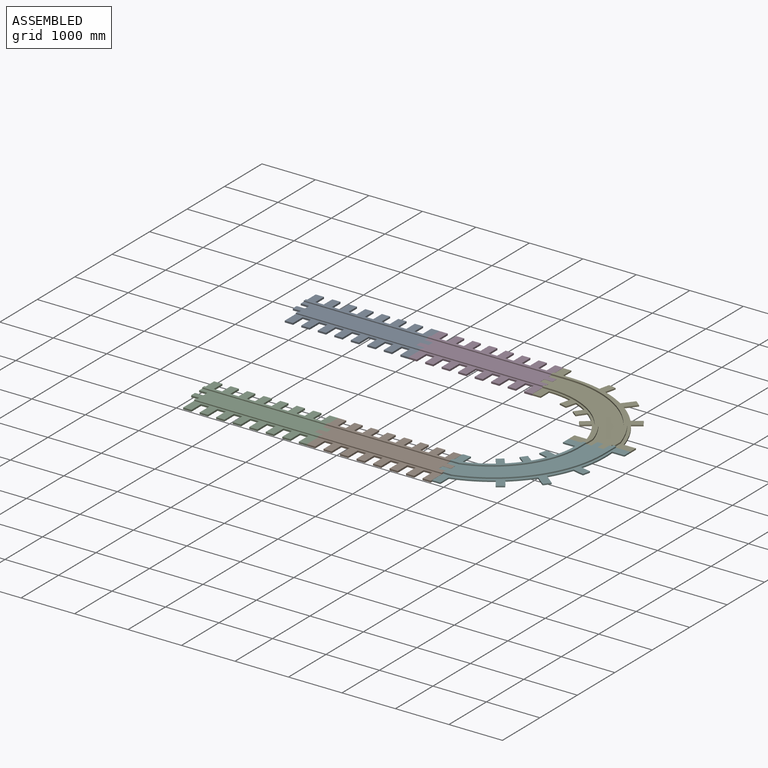
[diagram: assembled view]
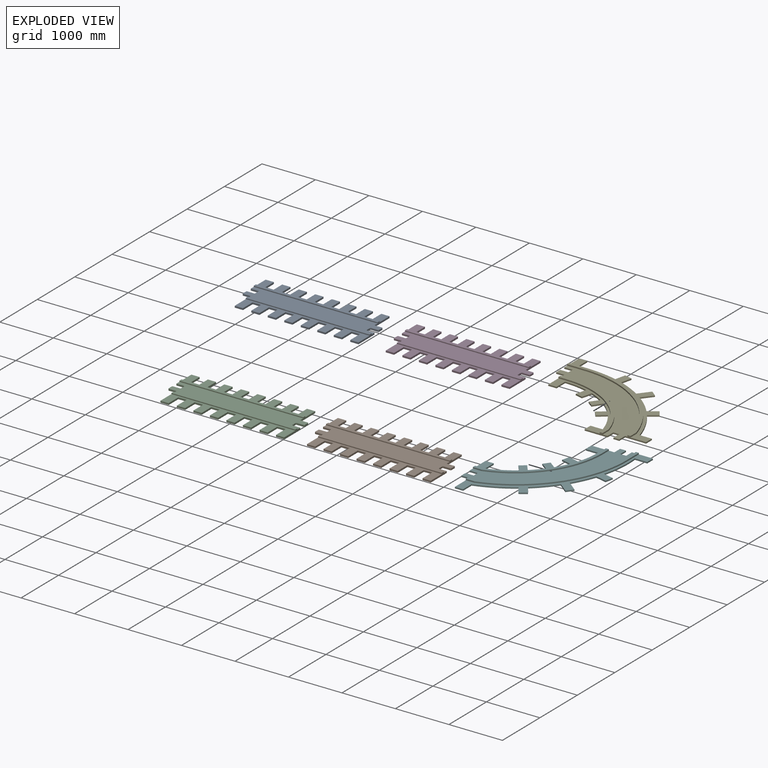
[diagram: exploded view]
GUIDED TOUR — MATED ASSEMBLY (Onshape document 573de1e4e4b0b9290a32814d, AutoMate assembly 573de1e4e4b0b9290a32814d_652605e21d5c1eac0f5606bd_4a24f7042980f0c675368cb2_default)

This assembly has 6 components, labeled P0..P5 below (a component is one placed occurrence of a part; the same part can appear more than once), held together by 5 mates. A mate is a constraint between two components; its type names the relative motion it leaves free:
  FASTENED — locks the two components together rigidly (no relative motion).
Axis/direction vectors are unit vectors and 'through' points are millimeter coordinates, both in the assembly's world frame.

MATES
  1. FASTENED "Fastened 4": P1 <-> P5, direction (1.000, 0.000, 0.000) through (3153.70, -3399.28, 773.69) mm
  2. FASTENED "Fastened 1": P3 <-> P0, direction (-1.000, 0.000, 0.000) through (153.58, -37.51, 773.69) mm
  3. FASTENED "Fastened 2": P4 <-> P3, direction (-1.000, 0.000, 0.000) through (2468.17, -37.51, 773.69) mm
  4. FASTENED "Fastened 5": P2 <-> P1, direction (1.000, 0.000, 0.000) through (839.10, -3399.28, 773.69) mm
  5. FASTENED "Fastened 3": P5 <-> P4, direction (0.000, 1.000, 0.000) through (4601.82, -1529.94, 773.69) mm

ASSEMBLY ORDER
  1. P5 — the base component [order verified]
  2. P4 [order verified]
  3. P3 [order verified]
  4. P2 [order verified]
  5. P1 [order verified]
  6. P0 [order verified]
Order-tag legend:
  [order verified] — this step's position reverses a verified removal order: the component was checked to insert without passing through the ones already placed.

Of the 6 components, 6 carry the full construction recipe — the FeatureScript program that regenerates the part's solid from scratch; the rest are supplied as boundary geometry only.
Each toured component is shown spotlighted twice — in the assembled view, then in the exploded view, where a leader line traces a displaced component back to its assembled socket (saturated green if recipe-attached, orange if geometry-only; every other component desaturated gray) — followed by its recipe or geometry summary and the mates that hold it.
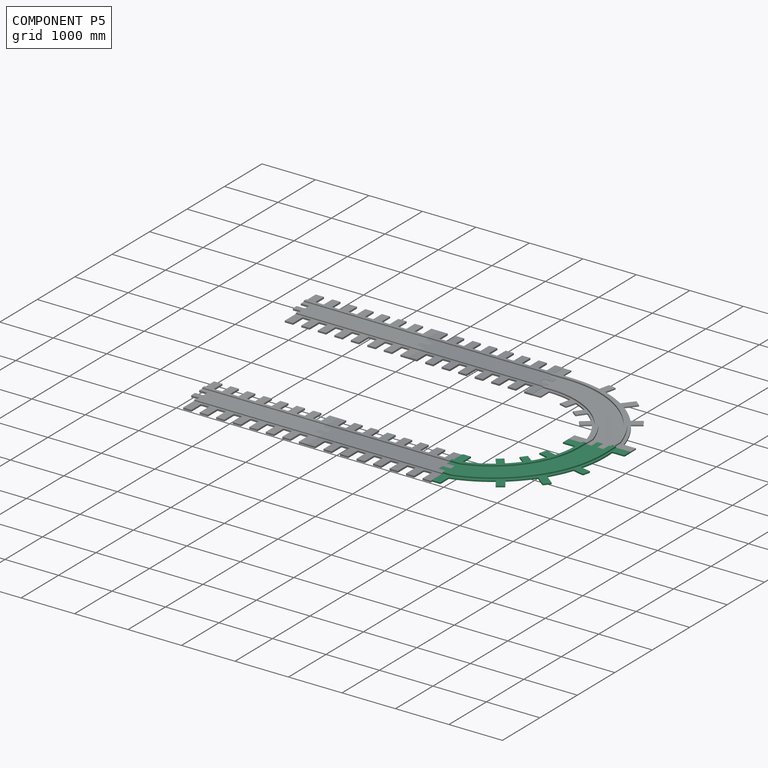
[diagram: component P5 — assembled]
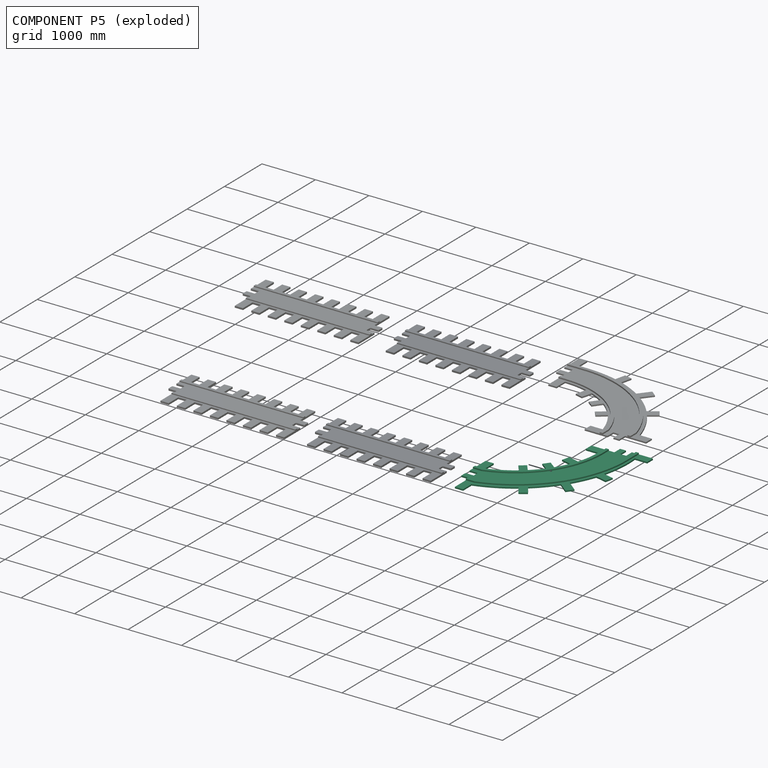
[diagram: component P5 — exploded]
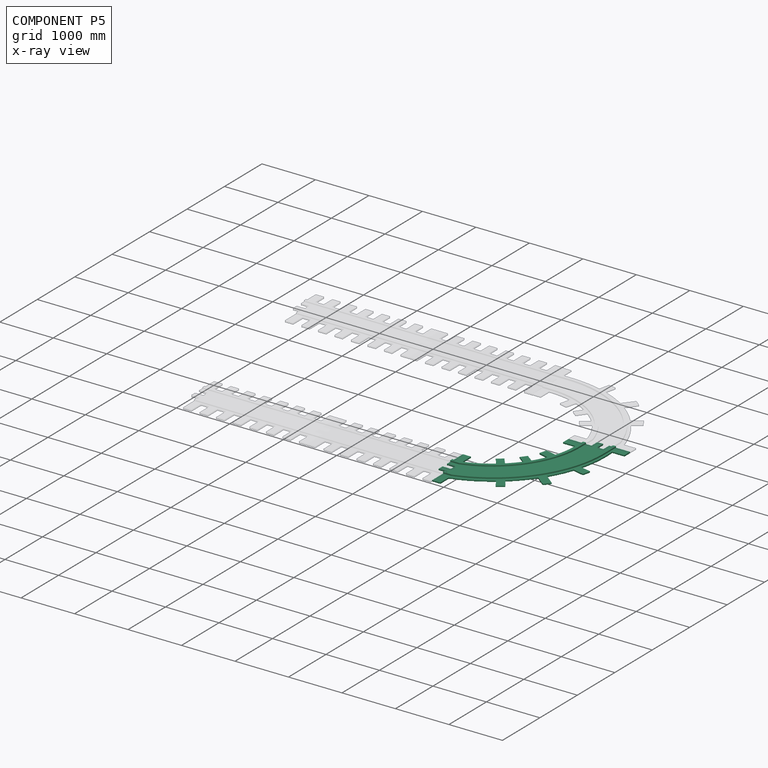
[diagram: component P5 — x-ray view]
COMPONENT P5 — same part as P4 (CADFS 00160971); its construction recipe is shown at P4.
Held by: FASTENED mate "Fastened 4" to P1; FASTENED mate "Fastened 3" to P4.
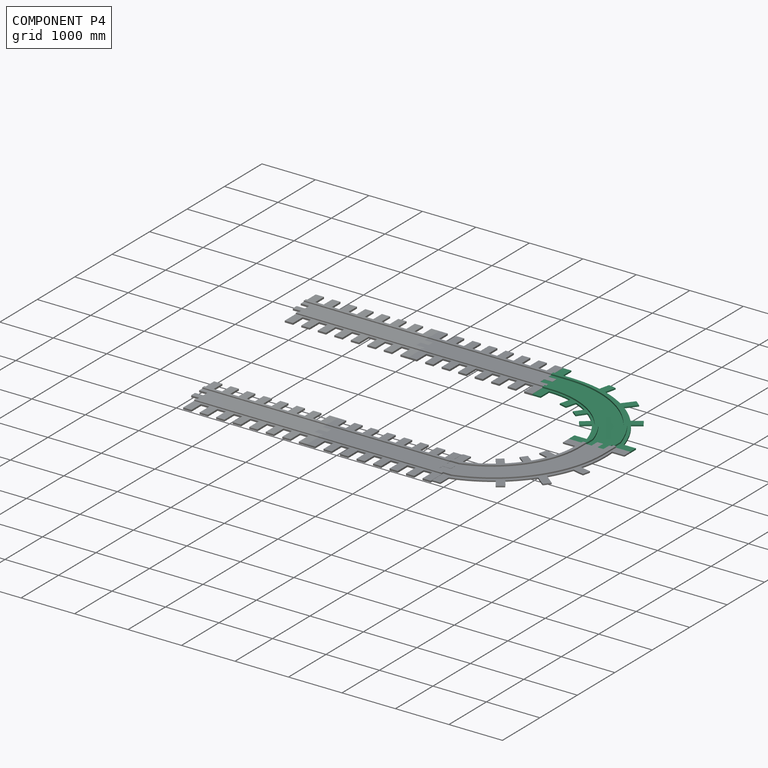
[diagram: component P4 — assembled]
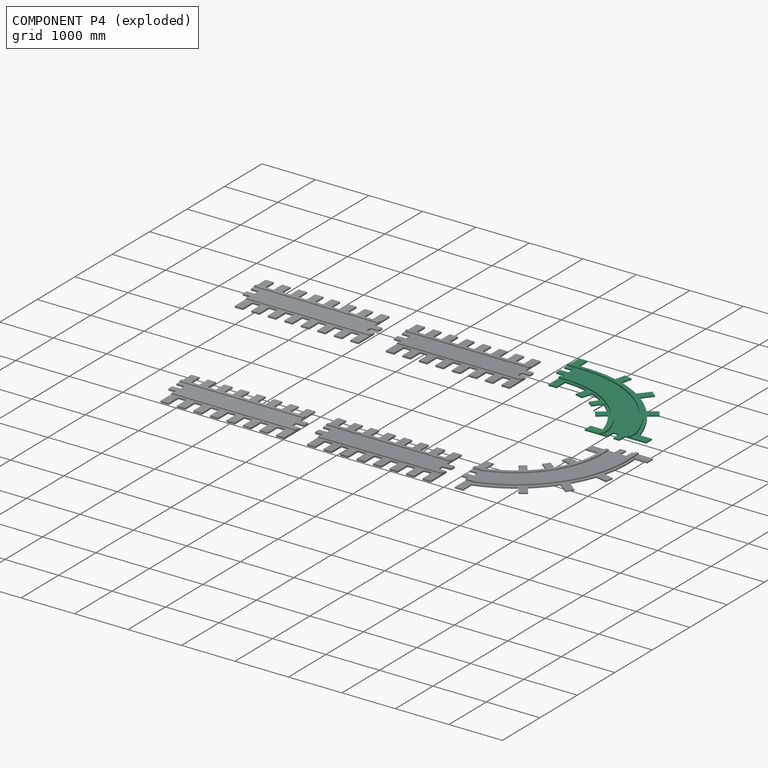
[diagram: component P4 — exploded]
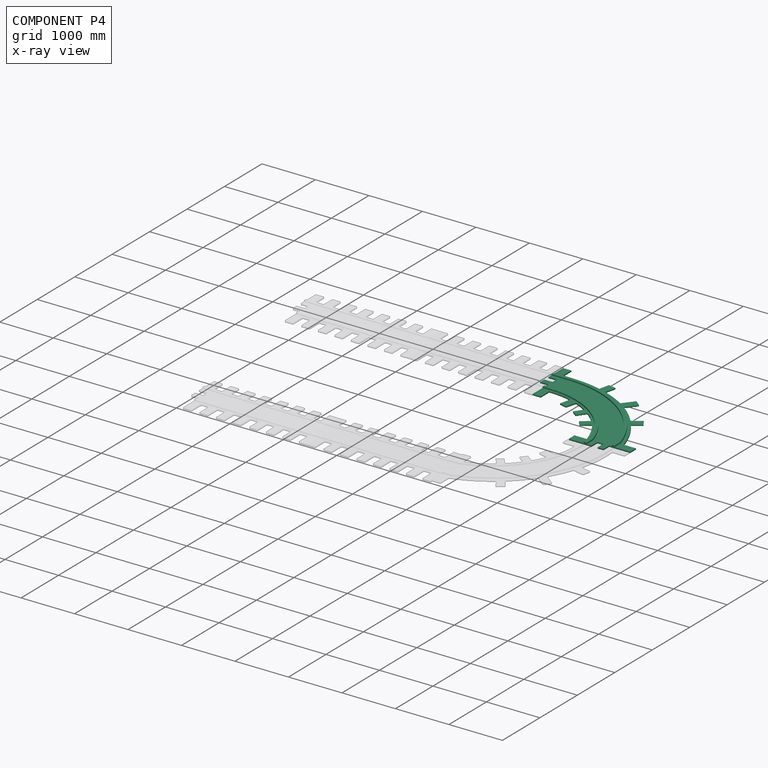
[diagram: component P4 — x-ray view]
COMPONENT P4 — recipe-attached (CADFS 00160971, mesh-verified: the recipe's output STEP matches this component's geometry to below the mesh-comparison resolution (tessellation chordal tolerance ~4.95 mm)).
Held by: FASTENED mate "Fastened 2" to P3; FASTENED mate "Fastened 3" to P5.
Construction recipe (FeatureScript — the CAD program that rebuilds this solid; sketch coordinates are in the units given by the * unit suffixes, e.g. mm):

FeatureScript 1511;
import(path : "onshape/std/geometry.fs", version : "1511.0");
import(path : "onshape/std/common.fs", version : "1511.0");
const mm = millimeter;
const VERTEX = EntityType.VERTEX;
const EDGE = EntityType.EDGE;
const FACE = EntityType.FACE;
const BODY = EntityType.BODY;
function v(x, y){return vector(x, y);}
function OD(order){return orderDisambiguation(order);}
function OSD(set){return originalSetDisambiguation(set);}
function TD(topology){return topologyDisambiguation(topology);}
function TDD(query){return trueDependencyDisambiguation(query);}
function sQuery(a, b, c) {return sketchEntityQuery(a, b, c);}

annotation { "Feature Type Name" : "Feature", "Feature Type Description" : "" }
export const myFeature = defineFeature(function(context is Context, id is Id, definition is map)
    precondition{}
    {
        {
            var Q0;
            Q0=qCreatedBy(makeId("Top.planeOp"),FACE);
            var sketch = newSketch(context, id + "F0", { "sketchPlane" : qUnion([Q0])});
            skLineSegment(sketch, "E0", {"start": v(-123.12, 340.2) * mm, "end": v(-123.12, -52.81) * mm});
            skLineSegment(sketch, "E1", {"start": v(-123.12, -52.81) * mm, "end": v(31.19, -52.81) * mm});
            skLineSegment(sketch, "E2", {"start": v(31.19, -52.81) * mm, "end": v(31.19, -162.82) * mm});
            skLineSegment(sketch, "E3", {"start": v(31.19, -162.82) * mm, "end": v(-123.12, -162.82) * mm});
            skLineSegment(sketch, "E4", {"start": v(-123.12, -162.82) * mm, "end": v(-123.12, -272.82) * mm});
            skLineSegment(sketch, "E5", {"start": v(-123.12, -272.82) * mm, "end": v(31.19, -272.82) * mm});
            skLineSegment(sketch, "E6", {"start": v(31.19, -272.82) * mm, "end": v(31.19, -700.69) * mm});
            skLineSegment(sketch, "E7", {"start": v(2458.55, -1555.94) * mm, "end": v(2065.54, -1555.94) * mm});
            skLineSegment(sketch, "E8", {"start": v(2065.54, -1555.94) * mm, "end": v(2065.54, -1710.24) * mm});
            skLineSegment(sketch, "E9", {"start": v(2065.54, -1710.24) * mm, "end": v(1955.53, -1710.24) * mm});
            skLineSegment(sketch, "E10", {"start": v(1955.53, -1710.24) * mm, "end": v(1955.53, -1555.94) * mm});
            skLineSegment(sketch, "E11", {"start": v(1955.53, -1555.94) * mm, "end": v(1845.52, -1555.94) * mm});
            skLineSegment(sketch, "E12", {"start": v(1845.52, -1555.94) * mm, "end": v(1845.52, -1710.24) * mm});
            skLineSegment(sketch, "E13", {"start": v(1845.52, -1710.24) * mm, "end": v(1417.66, -1710.24) * mm});
            skLineSegment(sketch, "E14", {"start": v(-123.12, 340.2) * mm, "end": v(31.19, 340.2) * mm});
            skLineSegment(sketch, "E15", {"start": v(31.19, 340.2) * mm, "end": v(31.19, 111.7) * mm});
            skLineSegment(sketch, "E16", {"start": v(2458.55, -1555.94) * mm, "end": v(2458.55, -1401.63) * mm});
            skLineSegment(sketch, "E17", {"start": v(2458.55, -1401.63) * mm, "end": v(2230.06, -1401.63) * mm});
            skLineSegment(sketch, "E18", {"start": v(31.19, -700.69) * mm, "end": v(185.5, -700.69) * mm});
            skLineSegment(sketch, "E19", {"start": v(185.5, -700.69) * mm, "end": v(185.5, -472.19) * mm});
            skLineSegment(sketch, "E20", {"start": v(1417.66, -1710.24) * mm, "end": v(1417.66, -1555.94) * mm});
            skLineSegment(sketch, "E21", {"start": v(1417.66, -1555.94) * mm, "end": v(1646.16, -1555.94) * mm});
            skArc(sketch, "E22", {"start": v(2230.06, -1401.63) * mm, "mid": v(1400.55, -252.77) * mm, "end": v(31.19, 111.7) * mm});
            skArc(sketch, "E23", {"start": v(1646.16, -1555.94) * mm, "mid": v(1097.84, -768.75) * mm, "end": v(185.5, -472.19) * mm});
            skLineSegment(sketch, "E24", {"start": v(622.9, -532.64) * mm, "end": v(569.25, -736.82) * mm});
            skLineSegment(sketch, "E25", {"start": v(569.25, -736.82) * mm, "end": v(711.49, -774.2) * mm});
            skLineSegment(sketch, "E26", {"start": v(711.49, -774.2) * mm, "end": v(762.28, -580.9) * mm});
            skLineSegment(sketch, "E27", {"start": v(1008.82, -707.53) * mm, "end": v(896.3, -858.64) * mm});
            skLineSegment(sketch, "E28", {"start": v(896.3, -858.64) * mm, "end": v(1004.64, -939.3) * mm});
            skLineSegment(sketch, "E29", {"start": v(1004.64, -939.3) * mm, "end": v(1119.46, -785.1) * mm});
            skLineSegment(sketch, "E30", {"start": v(1329.87, -981.94) * mm, "end": v(1180.76, -1097.54) * mm});
            skLineSegment(sketch, "E31", {"start": v(1180.76, -1097.54) * mm, "end": v(1263.3, -1204) * mm});
            skLineSegment(sketch, "E32", {"start": v(1263.3, -1204) * mm, "end": v(1414.4, -1086.87) * mm});
            skLineSegment(sketch, "E33", {"start": v(762.28, 43.92) * mm, "end": v(807.94, 241.05) * mm});
            skLineSegment(sketch, "E34", {"start": v(807.94, 241.05) * mm, "end": v(951.13, 207.94) * mm});
            skLineSegment(sketch, "E35", {"start": v(951.13, 207.94) * mm, "end": v(903.05, 0) * mm});
            skLineSegment(sketch, "E36", {"start": v(1324.29, -202.68) * mm, "end": v(1485.87, 0) * mm});
            skLineSegment(sketch, "E37", {"start": v(1485.87, 0) * mm, "end": v(1599.81, -90.84) * mm});
            skLineSegment(sketch, "E38", {"start": v(1599.81, -90.84) * mm, "end": v(1445.4, -284.5) * mm});
            skLineSegment(sketch, "E39", {"start": v(1819.14, -632.88) * mm, "end": v(1985.43, -518.5) * mm});
            skLineSegment(sketch, "E40", {"start": v(1985.43, -518.5) * mm, "end": v(2068.94, -639.9) * mm});
            skLineSegment(sketch, "E41", {"start": v(2068.94, -639.9) * mm, "end": v(1910.13, -749.14) * mm});
            skSolve(sketch);
        }
        {
            var Q0;
            Q0=qSketchRegion(id+"F0",true);
            extrude(context, id + "F1", {"entities" : qUnion([Q0]), "depth" : 25.4 * mm});
        }
        {
            var Q0;
            Q0=makeQuery(id+"F1.opExtrude","CAP_FACE",FACE,{"disambiguationData":[OSD([sQuery(id+"F0.wireOp",EDGE,"E0"),sQuery(id+"F0.wireOp",EDGE,"E1"),sQuery(id+"F0.wireOp",EDGE,"E2"),sQuery(id+"F0.wireOp",EDGE,"E3"),sQuery(id+"F0.wireOp",EDGE,"E4"),sQuery(id+"F0.wireOp",EDGE,"E5"),sQuery(id+"F0.wireOp",EDGE,"E6"),sQuery(id+"F0.wireOp",EDGE,"E7"),sQuery(id+"F0.wireOp",EDGE,"E8"),sQuery(id+"F0.wireOp",EDGE,"E9"),sQuery(id+"F0.wireOp",EDGE,"E10"),sQuery(id+"F0.wireOp",EDGE,"E11"),sQuery(id+"F0.wireOp",EDGE,"E12"),sQuery(id+"F0.wireOp",EDGE,"E13"),sQuery(id+"F0.wireOp",EDGE,"E14"),sQuery(id+"F0.wireOp",EDGE,"E15"),sQuery(id+"F0.wireOp",EDGE,"E16"),sQuery(id+"F0.wireOp",EDGE,"E17"),sQuery(id+"F0.wireOp",EDGE,"E18"),sQuery(id+"F0.wireOp",EDGE,"E19"),sQuery(id+"F0.wireOp",EDGE,"E20"),sQuery(id+"F0.wireOp",EDGE,"E21"),sQuery(id+"F0.wireOp",EDGE,"E22"),sQuery(id+"F0.wireOp",EDGE,"E23"),sQuery(id+"F0.wireOp",EDGE,"E24"),sQuery(id+"F0.wireOp",EDGE,"E25"),sQuery(id+"F0.wireOp",EDGE,"E26"),sQuery(id+"F0.wireOp",EDGE,"E27"),sQuery(id+"F0.wireOp",EDGE,"E28"),sQuery(id+"F0.wireOp",EDGE,"E29"),sQuery(id+"F0.wireOp",EDGE,"E30"),sQuery(id+"F0.wireOp",EDGE,"E31"),sQuery(id+"F0.wireOp",EDGE,"E32"),sQuery(id+"F0.wireOp",EDGE,"E33"),sQuery(id+"F0.wireOp",EDGE,"E34"),sQuery(id+"F0.wireOp",EDGE,"E35"),sQuery(id+"F0.wireOp",EDGE,"E36"),sQuery(id+"F0.wireOp",EDGE,"E37"),sQuery(id+"F0.wireOp",EDGE,"E38"),sQuery(id+"F0.wireOp",EDGE,"E39"),sQuery(id+"F0.wireOp",EDGE,"E40"),sQuery(id+"F0.wireOp",EDGE,"E41")])],"isStart":false});
            var sketch = newSketch(context, id + "F2", { "sketchPlane" : qUnion([Q0])});
            skLineSegment(sketch, "E42", {"start": v(31.19, -432.08) * mm, "end": v(185.43, -432.08) * mm});
            skLineSegment(sketch, "E43", {"start": v(-123.12, 77.71) * mm, "end": v(185.43, 77.71) * mm});
            skLineSegment(sketch, "E44", {"start": v(2165.73, -1555.94) * mm, "end": v(2165.73, -1396.56) * mm});
            skLineSegment(sketch, "E45", {"start": v(1697.89, -1710.24) * mm, "end": v(1697.89, -1555.94) * mm});
            skArc(sketch, "E46", {"start": v(1697.89, -1555.94) * mm, "mid": v(1127.58, -743.8) * mm, "end": v(185.43, -432.08) * mm});
            skArc(sketch, "E47", {"start": v(2165.73, -1396.56) * mm, "mid": v(1419.83, -331.32) * mm, "end": v(185.43, 77.71) * mm});
            skLineSegment(sketch, "E48.0", {"start": v(-123.12, 20.56) * mm, "end": v(185.43, 20.56) * mm});
            skArc(sketch, "E48.1", {"start": v(2108.58, -1404.99) * mm, "mid": v(1382.37, -374.69) * mm, "end": v(185.43, 20.56) * mm});
            skLineSegment(sketch, "E48.2", {"start": v(2108.58, -1555.94) * mm, "end": v(2108.58, -1404.99) * mm});
            skLineSegment(sketch, "E49.0", {"start": v(31.19, -374.93) * mm, "end": v(185.43, -374.93) * mm});
            skArc(sketch, "E49.1", {"start": v(1755.04, -1547.6) * mm, "mid": v(1165.07, -700.47) * mm, "end": v(185.43, -374.93) * mm});
            skLineSegment(sketch, "E49.2", {"start": v(1755.04, -1710.24) * mm, "end": v(1755.04, -1547.6) * mm});
            skLineSegment(sketch, "E50", {"start": v(31.19, -374.93) * mm, "end": v(31.19, -432.08) * mm});
            skLineSegment(sketch, "E51", {"start": v(-123.12, 77.71) * mm, "end": v(-123.12, 20.56) * mm});
            skLineSegment(sketch, "E52", {"start": v(1697.89, -1710.24) * mm, "end": v(1755.04, -1710.24) * mm});
            skLineSegment(sketch, "E53", {"start": v(2108.58, -1555.94) * mm, "end": v(2165.73, -1555.94) * mm});
            skLineSegment(sketch, "E54", {"start": v(31.19, -700.69) * mm, "end": v(31.19, -1710.24) * mm, "construction": true});
            skLineSegment(sketch, "E55", {"start": v(31.19, -1710.24) * mm, "end": v(1417.66, -1710.24) * mm, "construction": true});
            skSolve(sketch);
        }
        {
            var Q0;
            Q0=qSketchRegion(id+"F2",true);
            extrude(context, id + "F3", {"entities" : qUnion([Q0]), "operationType" : NewBodyOperationType.ADD, "depth" : 25.4 * mm});
        }
    });
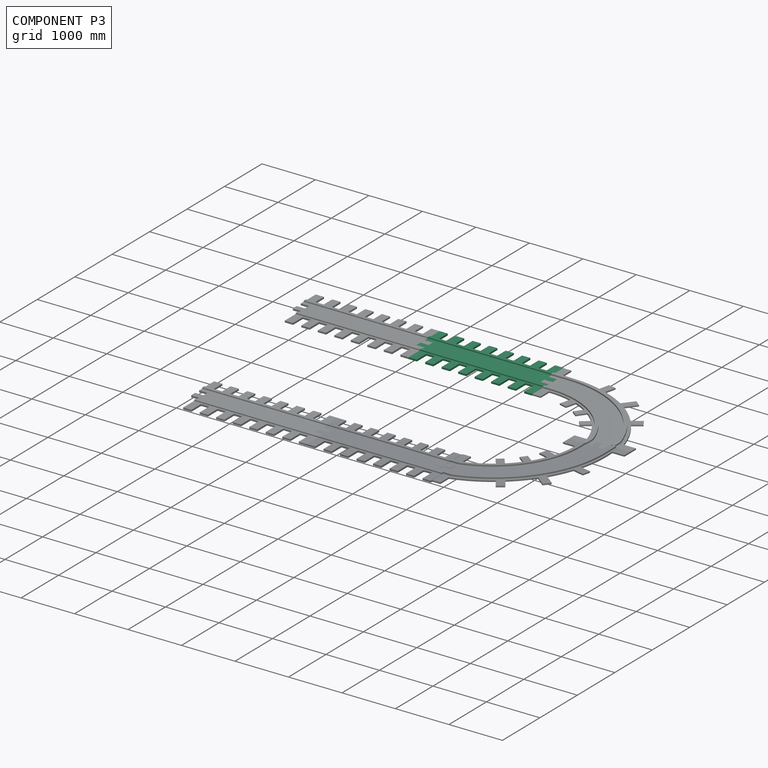
[diagram: component P3 — assembled]
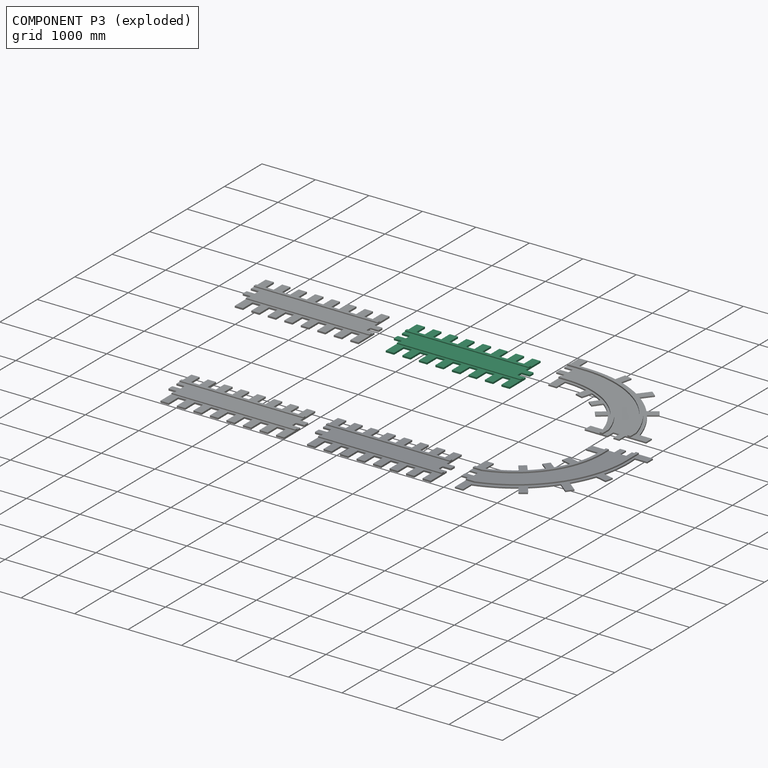
[diagram: component P3 — exploded]
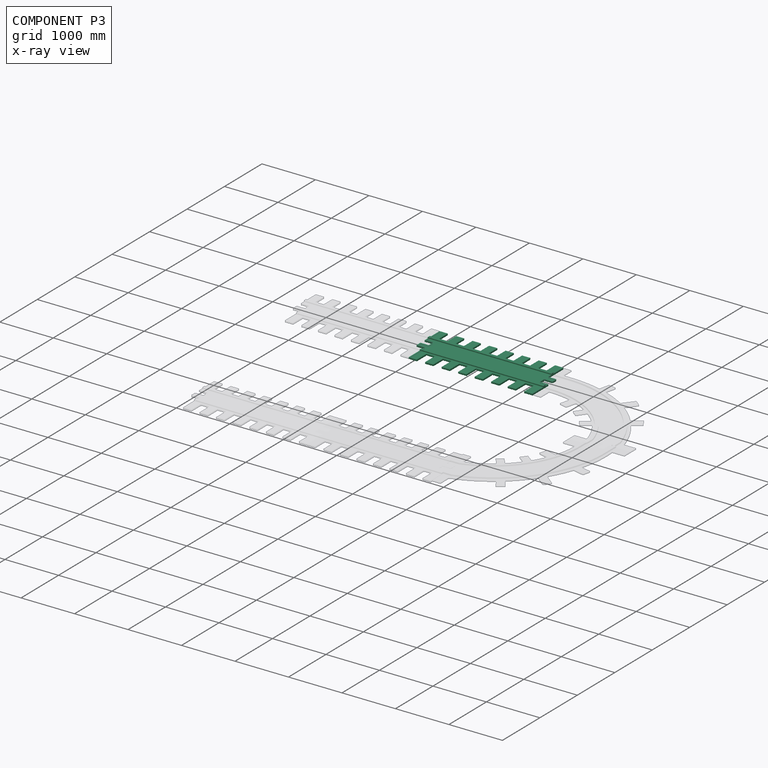
[diagram: component P3 — x-ray view]
COMPONENT P3 — same part as P0 (CADFS 00159531); its construction recipe is shown at P0.
Held by: FASTENED mate "Fastened 1" to P0; FASTENED mate "Fastened 2" to P4.
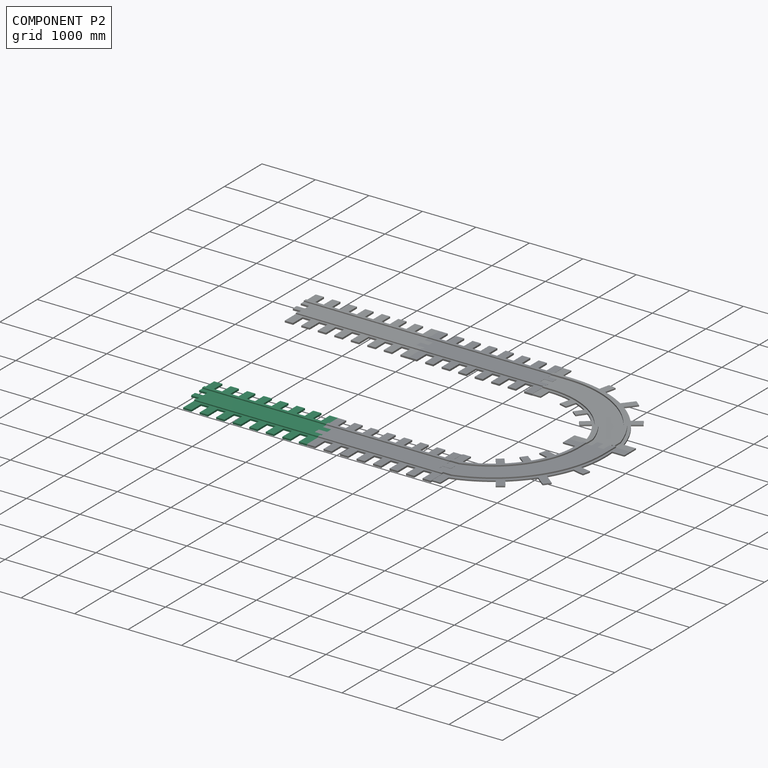
[diagram: component P2 — assembled]
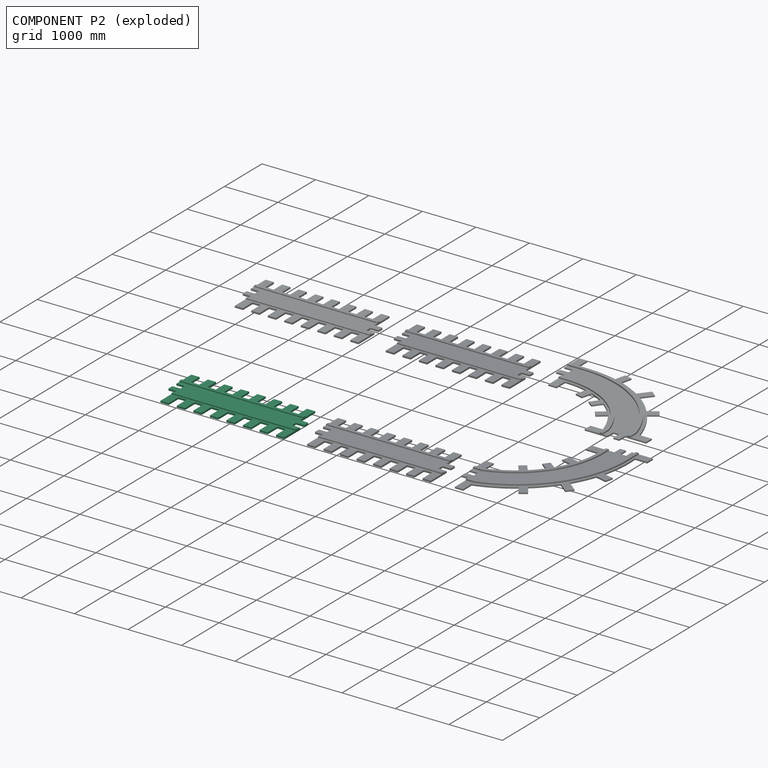
[diagram: component P2 — exploded]
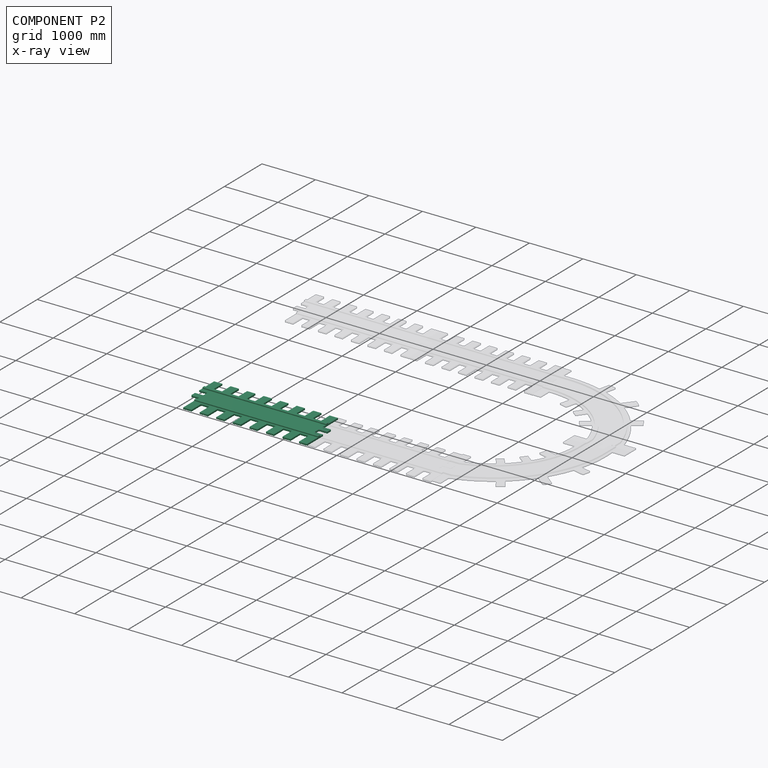
[diagram: component P2 — x-ray view]
COMPONENT P2 — same part as P0 (CADFS 00159531); its construction recipe is shown at P0.
Held by: FASTENED mate "Fastened 5" to P1.
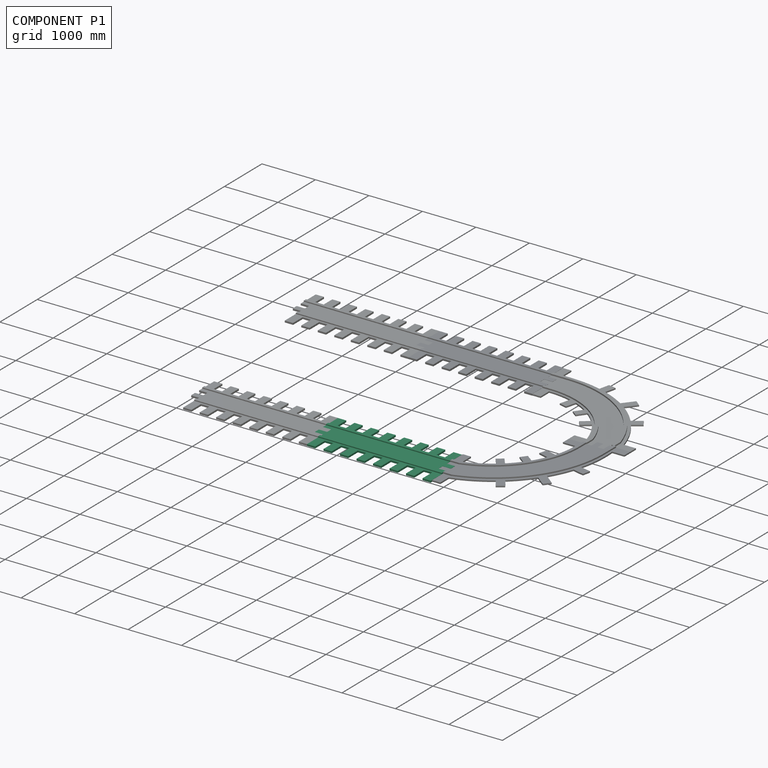
[diagram: component P1 — assembled]
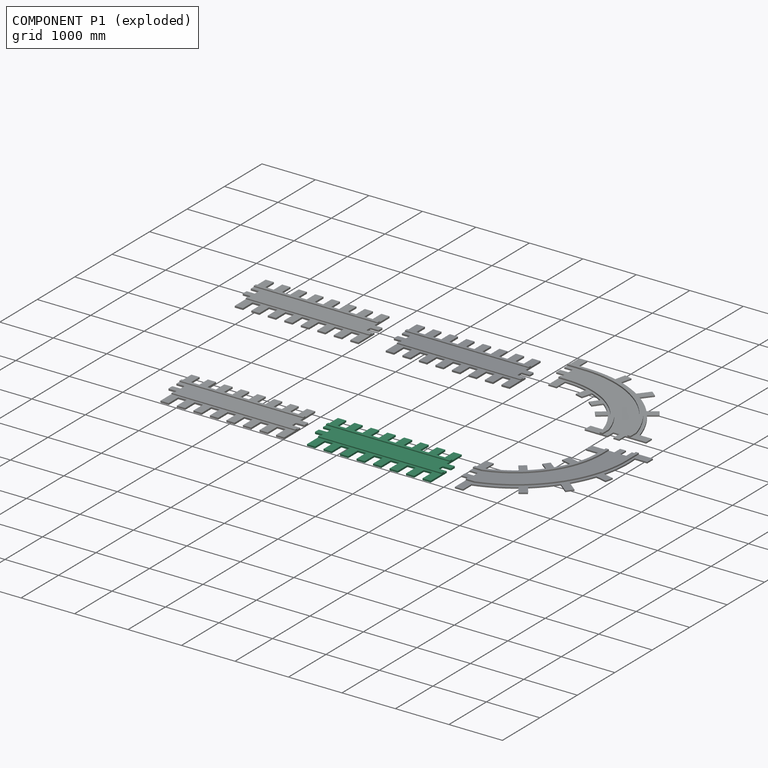
[diagram: component P1 — exploded]
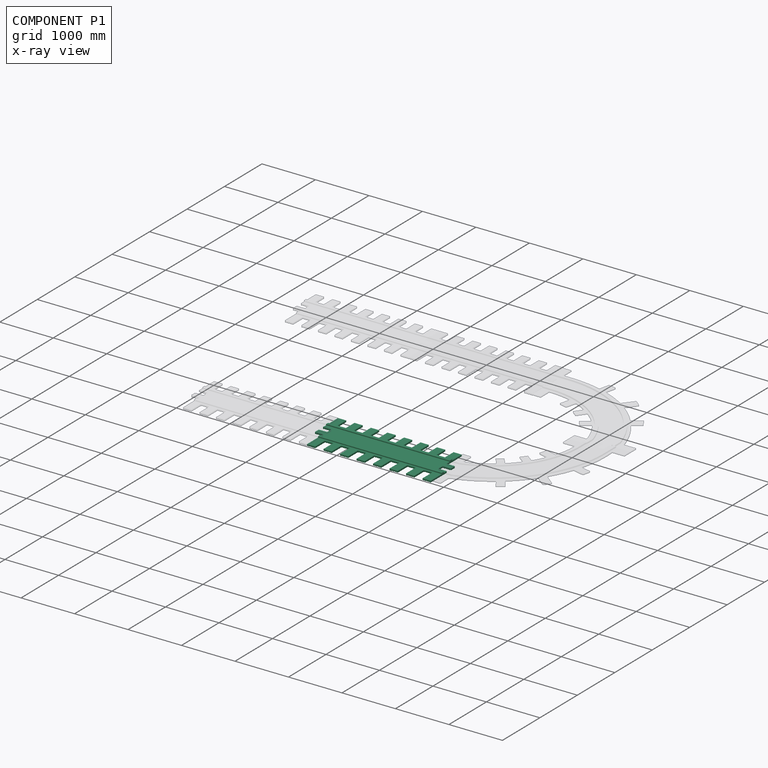
[diagram: component P1 — x-ray view]
COMPONENT P1 — same part as P0 (CADFS 00159531); its construction recipe is shown at P0.
Held by: FASTENED mate "Fastened 4" to P5; FASTENED mate "Fastened 5" to P2.
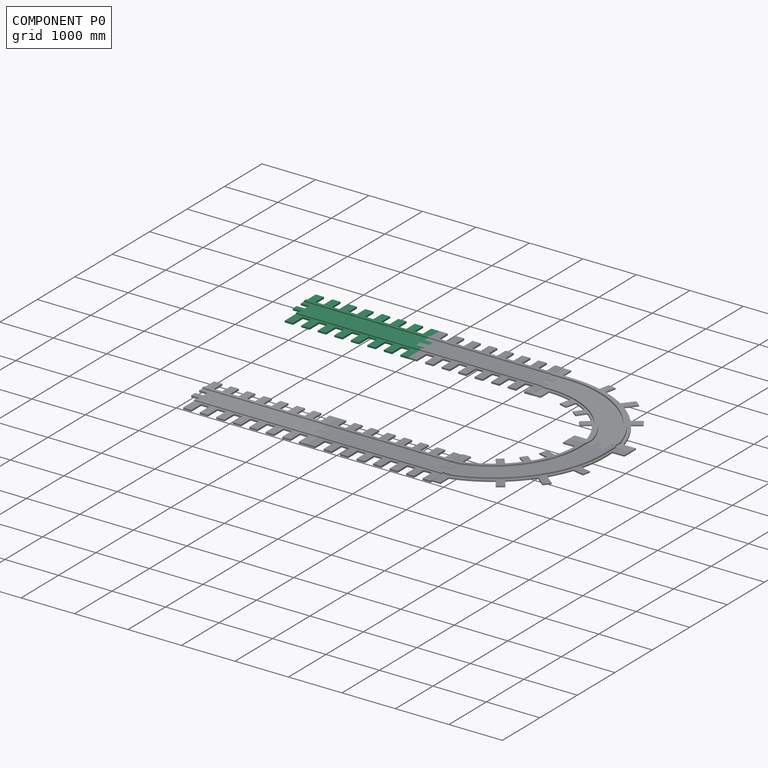
[diagram: component P0 — assembled]
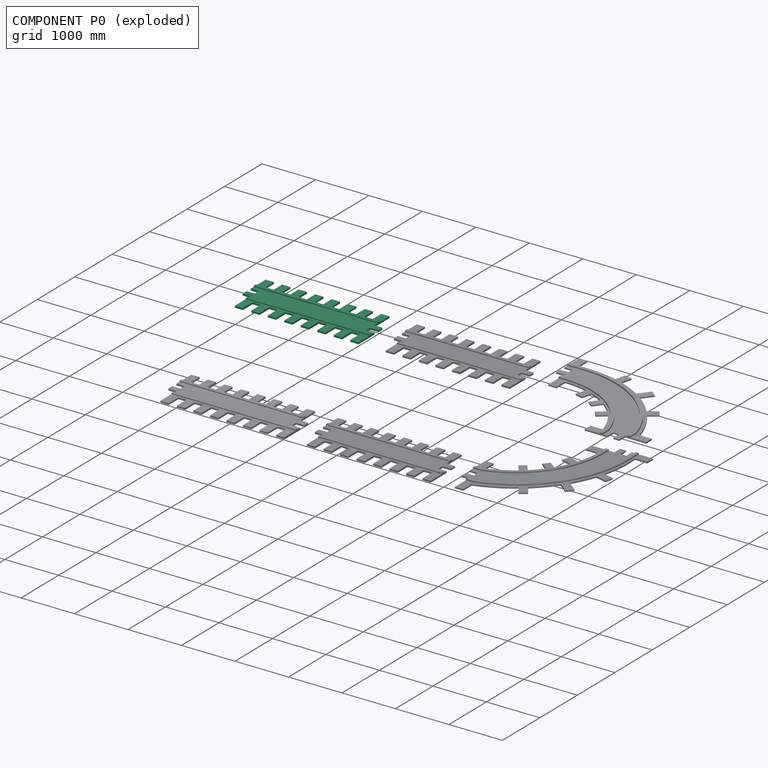
[diagram: component P0 — exploded]
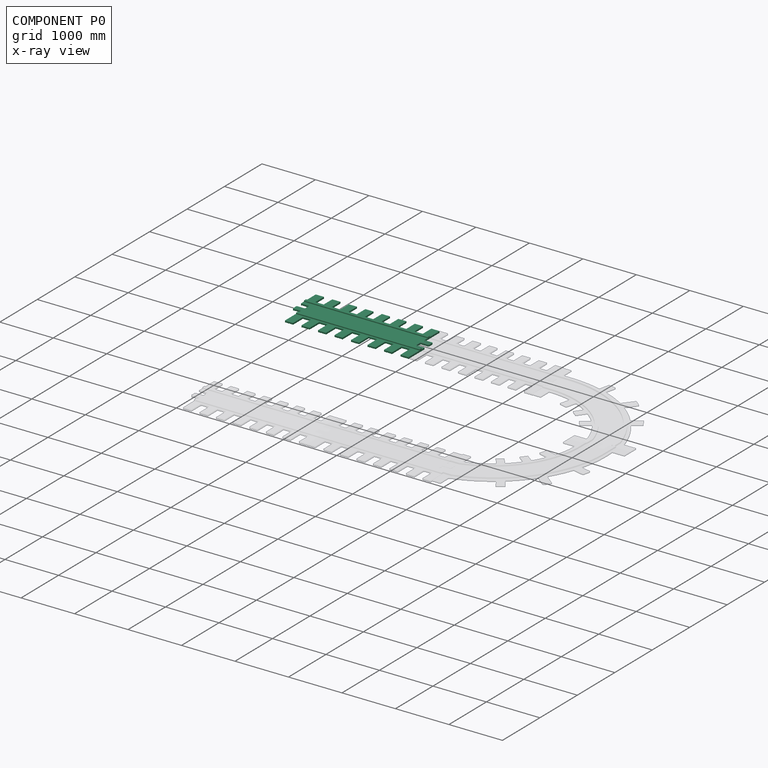
[diagram: component P0 — x-ray view]
COMPONENT P0 — recipe-attached (CADFS 00159531, mesh-verified: the recipe's output STEP matches this component's geometry to below the mesh-comparison resolution (tessellation chordal tolerance ~4.02 mm)).
Held by: FASTENED mate "Fastened 1" to P3.
Construction recipe (FeatureScript — the CAD program that rebuilds this solid; sketch coordinates are in the units given by the * unit suffixes, e.g. mm):

FeatureScript 1511;
import(path : "onshape/std/geometry.fs", version : "1511.0");
import(path : "onshape/std/common.fs", version : "1511.0");
const mm = millimeter;
const VERTEX = EntityType.VERTEX;
const EDGE = EntityType.EDGE;
const FACE = EntityType.FACE;
const BODY = EntityType.BODY;
function v(x, y){return vector(x, y);}
function OD(order){return orderDisambiguation(order);}
function OSD(set){return originalSetDisambiguation(set);}
function TD(topology){return topologyDisambiguation(topology);}
function TDD(query){return trueDependencyDisambiguation(query);}
function sQuery(a, b, c) {return sketchEntityQuery(a, b, c);}

annotation { "Feature Type Name" : "Feature", "Feature Type Description" : "" }
export const myFeature = defineFeature(function(context is Context, id is Id, definition is map)
    precondition{}
    {
        {
            var Q0;
            Q0=qCreatedBy(makeId("Top.planeOp"),FACE);
            var sketch = newSketch(context, id + "F0", { "sketchPlane" : qUnion([Q0])});
            skLineSegment(sketch, "E0", {"start": v(0, 0) * mm, "end": v(141.6, 0) * mm});
            skLineSegment(sketch, "E1", {"start": v(154.3, -12.7) * mm, "end": v(154.3, -97.3) * mm});
            skLineSegment(sketch, "E2", {"start": v(141.6, -110) * mm, "end": v(12.7, -110) * mm});
            skLineSegment(sketch, "E3", {"start": v(0, -122.7) * mm, "end": v(0, -207.32) * mm});
            skLineSegment(sketch, "E4", {"start": v(12.7, -220.02) * mm, "end": v(154.3, -220.02) * mm});
            skLineSegment(sketch, "E5", {"start": v(154.3, -220.02) * mm, "end": v(154.3, -647.87) * mm});
            skLineSegment(sketch, "E6", {"start": v(154.3, -647.87) * mm, "end": v(0, -647.87) * mm});
            skLineSegment(sketch, "E7", {"start": v(0, -647.87) * mm, "end": v(0, -389.82) * mm});
            skLineSegment(sketch, "E8", {"start": v(0, -389.82) * mm, "end": v(-154.3, -389.82) * mm});
            skLineSegment(sketch, "E9", {"start": v(-154.3, -389.82) * mm, "end": v(-154.3, -647.87) * mm});
            skLineSegment(sketch, "E10", {"start": v(-154.3, -647.87) * mm, "end": v(-308.61, -647.87) * mm});
            skLineSegment(sketch, "E11", {"start": v(-308.61, -647.87) * mm, "end": v(-308.61, -389.82) * mm});
            skLineSegment(sketch, "E12", {"start": v(-308.61, -389.82) * mm, "end": v(-462.92, -389.82) * mm});
            skLineSegment(sketch, "E13", {"start": v(-462.92, -389.82) * mm, "end": v(-462.92, -647.87) * mm});
            skLineSegment(sketch, "E14", {"start": v(-462.92, -647.87) * mm, "end": v(-617.22, -647.87) * mm});
            skLineSegment(sketch, "E15", {"start": v(-617.22, -647.87) * mm, "end": v(-617.22, -389.82) * mm});
            skLineSegment(sketch, "E16", {"start": v(-617.22, -389.82) * mm, "end": v(-771.53, -389.82) * mm});
            skLineSegment(sketch, "E17", {"start": v(-771.53, -389.82) * mm, "end": v(-771.53, -647.87) * mm});
            skLineSegment(sketch, "E18", {"start": v(-771.53, -647.87) * mm, "end": v(-925.83, -647.87) * mm});
            skLineSegment(sketch, "E19", {"start": v(-925.83, -647.87) * mm, "end": v(-925.83, -389.82) * mm});
            skPoint(sketch, "E20.visualSharp", {"position": v(154.3, 0) * mm});
            skArc(sketch, "E20.filletArc", {"start": v(154.3, -12.7) * mm, "mid": v(150.59, -3.72) * mm, "end": v(141.6, 0) * mm});
            skPoint(sketch, "E21.visualSharp", {"position": v(154.3, -110) * mm});
            skArc(sketch, "E21.filletArc", {"start": v(141.6, -110) * mm, "mid": v(150.59, -106.29) * mm, "end": v(154.3, -97.3) * mm});
            skPoint(sketch, "E22.visualSharp", {"position": v(0, -220.02) * mm});
            skArc(sketch, "E22.filletArc", {"start": v(0, -207.32) * mm, "mid": v(3.72, -216.3) * mm, "end": v(12.7, -220.02) * mm});
            skPoint(sketch, "E23.visualSharp", {"position": v(0, -110) * mm});
            skArc(sketch, "E23.filletArc", {"start": v(12.7, -110) * mm, "mid": v(3.72, -113.73) * mm, "end": v(0, -122.7) * mm});
            skLineSegment(sketch, "E24", {"start": v(-925.83, -389.82) * mm, "end": v(-1080.14, -389.82) * mm});
            skLineSegment(sketch, "E25", {"start": v(-1080.14, -389.82) * mm, "end": v(-1080.14, -647.87) * mm});
            skLineSegment(sketch, "E26", {"start": v(-1080.14, -647.87) * mm, "end": v(-1234.44, -647.87) * mm});
            skLineSegment(sketch, "E27", {"start": v(-1234.44, -647.87) * mm, "end": v(-1234.44, -389.82) * mm});
            skLineSegment(sketch, "E28", {"start": v(-1234.44, -389.82) * mm, "end": v(-1388.75, -389.82) * mm});
            skLineSegment(sketch, "E29", {"start": v(-1388.75, -389.82) * mm, "end": v(-1388.75, -647.87) * mm});
            skLineSegment(sketch, "E30", {"start": v(-1388.75, -647.87) * mm, "end": v(-1543.05, -647.87) * mm});
            skLineSegment(sketch, "E31", {"start": v(-1543.05, -647.87) * mm, "end": v(-1543.05, -389.82) * mm});
            skLineSegment(sketch, "E32", {"start": v(-1543.05, -389.82) * mm, "end": v(-1697.36, -389.82) * mm});
            skLineSegment(sketch, "E33", {"start": v(-1697.36, -389.82) * mm, "end": v(-1697.36, -647.87) * mm});
            skLineSegment(sketch, "E34", {"start": v(-1697.36, -647.87) * mm, "end": v(-1851.67, -647.87) * mm});
            skLineSegment(sketch, "E35", {"start": v(-1851.67, -647.87) * mm, "end": v(-1851.67, -389.82) * mm});
            skLineSegment(sketch, "E36", {"start": v(-1851.67, -389.82) * mm, "end": v(-2005.97, -389.82) * mm});
            skLineSegment(sketch, "E37", {"start": v(-2005.97, -389.82) * mm, "end": v(-2005.97, -647.87) * mm});
            skLineSegment(sketch, "E38", {"start": v(-2005.97, -647.87) * mm, "end": v(-2160.29, -647.87) * mm});
            skLineSegment(sketch, "E39", {"start": v(-2160.29, -647.87) * mm, "end": v(-2160.29, -220.02) * mm});
            skLineSegment(sketch, "E40", {"start": v(-2160.29, -220.02) * mm, "end": v(-2301.9, -220.02) * mm});
            skLineSegment(sketch, "E41", {"start": v(-2314.6, -207.32) * mm, "end": v(-2314.6, -122.7) * mm});
            skLineSegment(sketch, "E42", {"start": v(-2301.9, -110) * mm, "end": v(-2172.99, -110) * mm});
            skLineSegment(sketch, "E43", {"start": v(-2160.29, -97.3) * mm, "end": v(-2160.29, -12.7) * mm});
            skLineSegment(sketch, "E44", {"start": v(-2172.99, 0) * mm, "end": v(-2314.6, 0) * mm});
            skLineSegment(sketch, "E45", {"start": v(-2314.6, 0) * mm, "end": v(-2314.6, 399.88) * mm});
            skPoint(sketch, "E46.visualSharp", {"position": v(-2314.6, -110) * mm});
            skArc(sketch, "E46.filletArc", {"start": v(-2301.9, -110) * mm, "mid": v(-2310.87, -113.73) * mm, "end": v(-2314.6, -122.7) * mm});
            skPoint(sketch, "E47.visualSharp", {"position": v(-2314.6, -220.02) * mm});
            skArc(sketch, "E47.filletArc", {"start": v(-2314.6, -207.32) * mm, "mid": v(-2310.87, -216.3) * mm, "end": v(-2301.9, -220.02) * mm});
            skPoint(sketch, "E48.visualSharp", {"position": v(-2160.29, -110) * mm});
            skArc(sketch, "E48.filletArc", {"start": v(-2172.99, -110) * mm, "mid": v(-2164, -106.29) * mm, "end": v(-2160.29, -97.3) * mm});
            skPoint(sketch, "E49.visualSharp", {"position": v(-2160.29, 0) * mm});
            skArc(sketch, "E49.filletArc", {"start": v(-2160.29, -12.7) * mm, "mid": v(-2164, -3.72) * mm, "end": v(-2172.99, 0) * mm});
            skLineSegment(sketch, "E50", {"start": v(-2314.6, 399.88) * mm, "end": v(-2160.29, 399.88) * mm});
            skLineSegment(sketch, "E51", {"start": v(-2160.29, 399.88) * mm, "end": v(-2160.29, 172.14) * mm});
            skLineSegment(sketch, "E52", {"start": v(-2160.29, 172.14) * mm, "end": v(-2005.98, 172.14) * mm});
            skLineSegment(sketch, "E53", {"start": v(-2005.98, 172.14) * mm, "end": v(-2005.98, 399.88) * mm});
            skLineSegment(sketch, "E54", {"start": v(-2005.98, 399.88) * mm, "end": v(-1851.68, 399.88) * mm});
            skLineSegment(sketch, "E55", {"start": v(-1851.68, 399.88) * mm, "end": v(-1851.68, 172.14) * mm});
            skLineSegment(sketch, "E56", {"start": v(-1851.68, 172.14) * mm, "end": v(-1697.37, 172.14) * mm});
            skLineSegment(sketch, "E57", {"start": v(-1697.37, 172.14) * mm, "end": v(-1697.37, 399.88) * mm});
            skLineSegment(sketch, "E58", {"start": v(-1697.37, 399.88) * mm, "end": v(-1543.07, 399.88) * mm});
            skLineSegment(sketch, "E59", {"start": v(-1543.07, 399.88) * mm, "end": v(-1543.07, 172.14) * mm});
            skLineSegment(sketch, "E60", {"start": v(-1543.07, 172.14) * mm, "end": v(-1388.76, 172.14) * mm});
            skLineSegment(sketch, "E61", {"start": v(-1388.76, 172.14) * mm, "end": v(-1388.76, 400.96) * mm});
            skLineSegment(sketch, "E62", {"start": v(-1388.76, 400.96) * mm, "end": v(-1234.46, 400.96) * mm});
            skLineSegment(sketch, "E63", {"start": v(-1234.46, 400.96) * mm, "end": v(-1234.46, 172.14) * mm});
            skLineSegment(sketch, "E64", {"start": v(-1234.46, 172.14) * mm, "end": v(-1080.15, 172.14) * mm});
            skLineSegment(sketch, "E65", {"start": v(-1080.15, 172.14) * mm, "end": v(-1080.15, 400.96) * mm});
            skLineSegment(sketch, "E66", {"start": v(-1080.15, 400.96) * mm, "end": v(-925.85, 400.96) * mm});
            skLineSegment(sketch, "E67", {"start": v(-925.85, 400.96) * mm, "end": v(-925.85, 172.14) * mm});
            skLineSegment(sketch, "E68", {"start": v(-925.85, 172.14) * mm, "end": v(-771.54, 172.14) * mm});
            skLineSegment(sketch, "E69", {"start": v(-771.54, 172.14) * mm, "end": v(-771.54, 400.96) * mm});
            skLineSegment(sketch, "E70", {"start": v(-771.54, 400.96) * mm, "end": v(-617.24, 400.96) * mm});
            skLineSegment(sketch, "E71", {"start": v(-617.24, 400.96) * mm, "end": v(-617.24, 172.14) * mm});
            skLineSegment(sketch, "E72", {"start": v(-617.24, 172.14) * mm, "end": v(-462.93, 172.14) * mm});
            skLineSegment(sketch, "E73", {"start": v(-462.93, 172.14) * mm, "end": v(-462.93, 400.96) * mm});
            skLineSegment(sketch, "E74", {"start": v(-462.93, 400.96) * mm, "end": v(-308.63, 400.96) * mm});
            skLineSegment(sketch, "E75", {"start": v(-308.63, 400.96) * mm, "end": v(-308.63, 172.14) * mm});
            skLineSegment(sketch, "E76", {"start": v(-308.63, 172.14) * mm, "end": v(-154.32, 172.14) * mm});
            skLineSegment(sketch, "E77", {"start": v(-154.32, 172.14) * mm, "end": v(-154.32, 400.96) * mm});
            skLineSegment(sketch, "E78", {"start": v(-154.32, 400.96) * mm, "end": v(-0.02, 400.96) * mm});
            skLineSegment(sketch, "E79", {"start": v(-0.02, 400.96) * mm, "end": v(-0.02, 172.14) * mm});
            skLineSegment(sketch, "E80", {"start": v(-0.02, 172.14) * mm, "end": v(0, 0) * mm});
            skSolve(sketch);
        }
        {
            var Q0;
            Q0=makeQuery(id+"F0.imprint","IMPRINT",FACE,{"disambiguationData":[TD([[makeQuery(id+"F0.imprint","IMPRINT",EDGE,{"derivedFrom":sQuery(id+"F0.wireOp",EDGE,"E0")}),-1.0]])]});
            var sketch = newSketch(context, id + "F1", { "sketchPlane" : qUnion([Q0])});
            skLineSegment(sketch, "E81", {"start": v(-2314.86, 138.26) * mm, "end": v(0, 138.26) * mm});
            skLineSegment(sketch, "E82.0", {"start": v(-2314.86, 81.11) * mm, "end": v(0, 81.11) * mm});
            skLineSegment(sketch, "E83", {"start": v(-2160.59, -353.29) * mm, "end": v(154.12, -353.29) * mm});
            skLineSegment(sketch, "E84.0", {"start": v(-2160.59, -296.14) * mm, "end": v(154.12, -296.14) * mm});
            skLineSegment(sketch, "E85", {"start": v(-2314.86, 138.26) * mm, "end": v(-2314.86, 81.11) * mm});
            skLineSegment(sketch, "E86", {"start": v(-2160.59, -296.14) * mm, "end": v(-2160.59, -353.29) * mm});
            skLineSegment(sketch, "E87", {"start": v(154.12, -296.14) * mm, "end": v(154.12, -353.29) * mm});
            skLineSegment(sketch, "E88", {"start": v(0, 138.26) * mm, "end": v(0, 81.11) * mm});
            skSolve(sketch);
        }
        {
            var Q0;
            Q0=qSketchRegion(id+"F0",true);
            extrude(context, id + "F2", {"entities" : qUnion([Q0]), "depth" : 31.75 * mm});
        }
        {
            var Q0;
            Q0=qSketchRegion(id+"F1",true);
            extrude(context, id + "F3", {"entities" : qUnion([Q0]), "operationType" : NewBodyOperationType.ADD, "depth" : 50.8 * mm});
        }
    });
PROVENANCE & LICENSES
Assembly (occurrences, transforms, mates, per-part STEP geometry): AutoMate dataset, Zenodo record 7776208, CC0.
Construction recipes: CADFS (HuggingFace VladPyatov/CADFS, CC-BY-4.0, layered over the ABC dataset), FeatureScript reconstruction programs keyed by ABC model id.
Join: ABC meta listings map ABC model id -> Onshape documentId; within a shared document, parts are matched by geometric signature (bounding-box dims + volume at 0.1% relative tolerance, exact B-rep face/solid counts).
Verification: 6 of this assembly's 6 components carry a recipe attachment, and every attachment is mesh-verified: the CADFS STEP and the AutoMate member STEP were compared as meshes in their shared local frame (symmetric sampled-point-to-mesh distance); worst across the 6 attachments: below the mesh-comparison resolution (tessellation chordal tolerance ~4.95 mm) on a 3297 mm part.
Renders: orthographic iso camera (az 35 / el 25); the floor grid conveys scale (grid pitch printed in each image; no ruler). In the exploded view each component is displaced by its stored offset vector: the offsets alone carry the explosion direction (mate normal/axis signs are not orientation cues and do not encode it), and separation distances are assigned per mate-chain, not proportionally to assembly-order depth.
